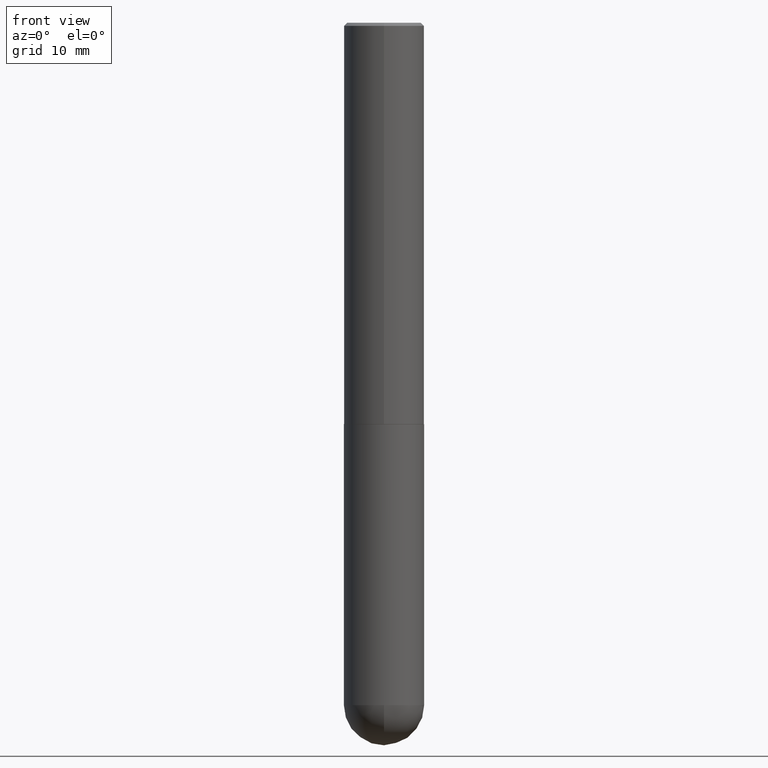
[diagram: clean part render]
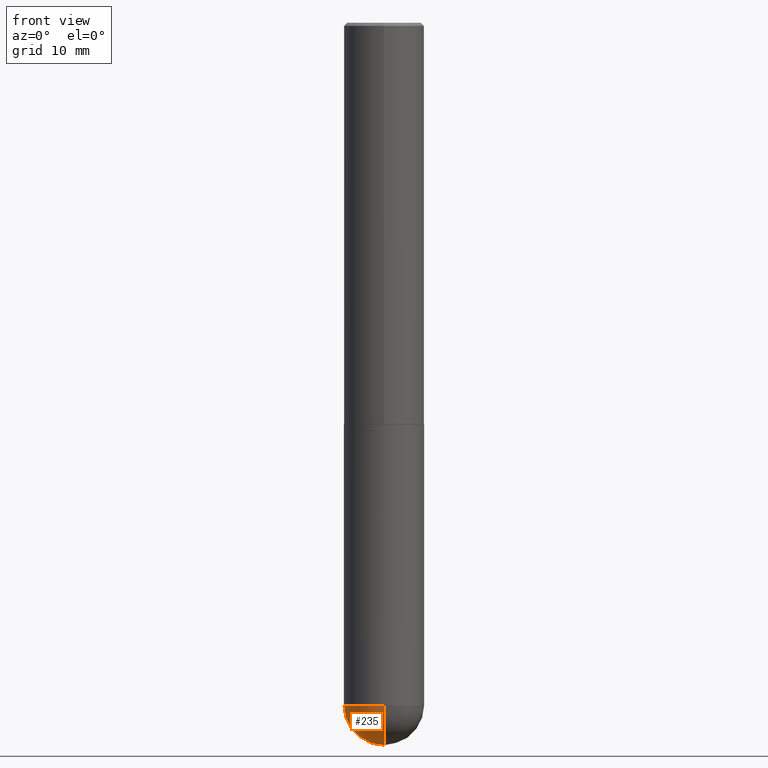
[diagram: same view with one face highlighted and labeled with its STEP entity id]
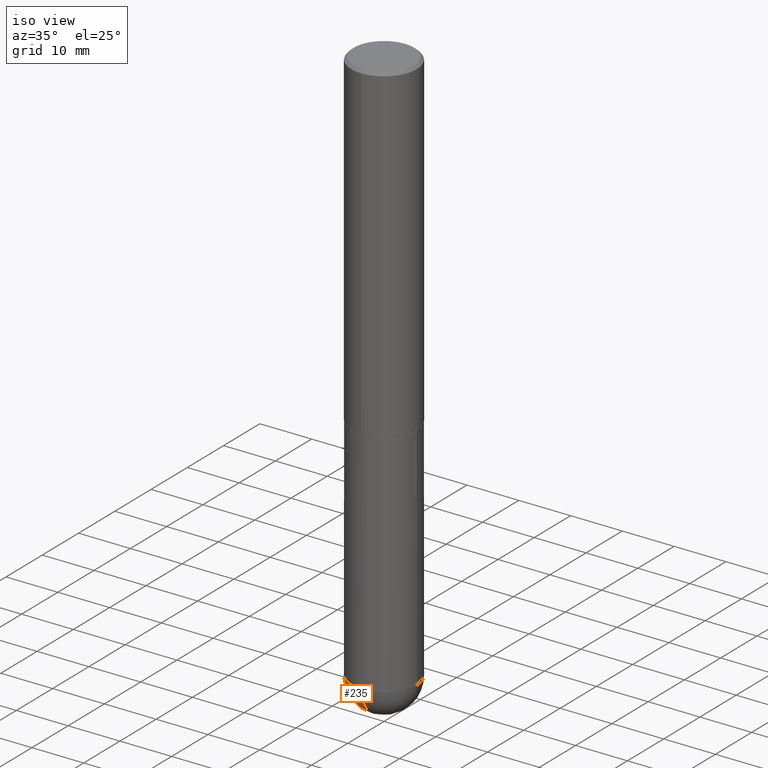
[diagram: same view with one face highlighted and labeled with its STEP entity id]
A machine part, front view. The second image highlights one B-rep face of the part: STEP entity #235.
A second angle (iso view) of the same face is appended — the face is thin or edge-on in the first view.
In plain terms, the highlighted spherical surface has radius 6.35 mm.
Its self-contained STEP definition (entity closure, byte-faithful):
#19 = CIRCLE ( 'NONE', #257, 0.2500000000000000000 ) ;
#21 = CARTESIAN_POINT ( 'NONE',  ( 1.006212264837294429E-28, -1.531297805822341912E-14, -4.250000000000000000 ) ) ;
#22 = SPHERICAL_SURFACE ( 'NONE', #69, 0.2500000000000001110 ) ;
#32 = CIRCLE ( 'NONE', #205, 0.2500000000000001110 ) ;
#40 = AXIS2_PLACEMENT_3D ( 'NONE', #176, #271, #299 ) ;
#41 = CARTESIAN_POINT ( 'NONE',  ( 1.006212264837294429E-28, -1.531297805822341912E-14, -4.250000000000000000 ) ) ;
#57 = DIRECTION ( 'NONE',  ( -1.000000000000000000, 6.982962677686265922E-15, -4.883557194083113462E-29 ) ) ;
#69 = AXIS2_PLACEMENT_3D ( 'NONE', #21, #57, #190 ) ;
#84 = CIRCLE ( 'NONE', #40, 0.2500000000000000000 ) ;
#96 = AXIS2_PLACEMENT_3D ( 'NONE', #240, #303, #298 ) ;
#98 = VERTEX_POINT ( 'NONE', #400 ) ;
#106 = ORIENTED_EDGE ( 'NONE', *, *, #110, .T. ) ;
#110 = EDGE_CURVE ( 'NONE', #326, #201, #152, .T. ) ;
#114 = CARTESIAN_POINT ( 'NONE',  ( -1.776356839400148307E-15, -0.2500000000000151545, -4.249999999999999112 ) ) ;
#121 = DIRECTION ( 'NONE',  ( 1.000000000000000000, -6.982962677686270655E-15, 0.000000000000000000 ) ) ;
#152 = CIRCLE ( 'NONE', #96, 0.2500000000000001110 ) ;
#162 = EDGE_CURVE ( 'NONE', #186, #98, #84, .T. ) ;
#175 = EDGE_CURVE ( 'NONE', #326, #186, #32, .T. ) ;
#176 = CARTESIAN_POINT ( 'NONE',  ( 1.039324242628683054E-28, -1.483879569008337040E-14, -4.250000000000000000 ) ) ;
#186 = VERTEX_POINT ( 'NONE', #302 ) ;
#187 = CARTESIAN_POINT ( 'NONE',  ( 1.068417942853397052E-28, -1.617054030794486372E-14, -4.500000000000000888 ) ) ;
#190 = DIRECTION ( 'NONE',  ( 6.982962677686265922E-15, 1.000000000000000000, -4.370956789862818783E-15 ) ) ;
#201 = VERTEX_POINT ( 'NONE', #114 ) ;
#205 = AXIS2_PLACEMENT_3D ( 'NONE', #41, #268, #394 ) ;
#213 = FACE_OUTER_BOUND ( 'NONE', #279, .T. ) ;
#220 = ORIENTED_EDGE ( 'NONE', *, *, #175, .F. ) ;
#235 = ADVANCED_FACE ( 'NONE', ( #213 ), #22, .T. ) ;
#240 = CARTESIAN_POINT ( 'NONE',  ( 1.006212264837294429E-28, -1.531297805822341912E-14, -4.250000000000000000 ) ) ;
#257 = AXIS2_PLACEMENT_3D ( 'NONE', #410, #402, #121 ) ;
#268 = DIRECTION ( 'NONE',  ( 1.000000000000000000, -6.982962677686265922E-15, 4.883557194083112340E-29 ) ) ;
#271 = DIRECTION ( 'NONE',  ( -2.445468806185136597E-29, 3.491481338843145583E-15, 1.000000000000000000 ) ) ;
#279 = EDGE_LOOP ( 'NONE', ( #220, #106, #306, #353 ) ) ;
#298 = DIRECTION ( 'NONE',  ( -7.105427357601001859E-15, -1.000000000000000000, 0.000000000000000000 ) ) ;
#299 = DIRECTION ( 'NONE',  ( 1.000000000000000000, -6.982962677686270655E-15, 0.000000000000000000 ) ) ;
#302 = CARTESIAN_POINT ( 'NONE',  ( 1.745740669421669032E-15, 0.2499999999999849842, -4.250000000000001776 ) ) ;
#303 = DIRECTION ( 'NONE',  ( -1.000000000000000000, 7.105427357601001070E-15, -4.926315508542082329E-29 ) ) ;
#306 = ORIENTED_EDGE ( 'NONE', *, *, #354, .F. ) ;
#326 = VERTEX_POINT ( 'NONE', #187 ) ;
#353 = ORIENTED_EDGE ( 'NONE', *, *, #162, .F. ) ;
#354 = EDGE_CURVE ( 'NONE', #98, #201, #19, .T. ) ;
#394 = DIRECTION ( 'NONE',  ( 6.982962677686266711E-15, 1.000000000000000000, 0.000000000000000000 ) ) ;
#400 = CARTESIAN_POINT ( 'NONE',  ( -0.2500000000000000000, -1.000739267919536879E-14, -4.250000000000000000 ) ) ;
#402 = DIRECTION ( 'NONE',  ( -2.445468806185136597E-29, 3.491481338843145583E-15, 1.000000000000000000 ) ) ;
#410 = CARTESIAN_POINT ( 'NONE',  ( 1.039324242628683054E-28, -1.483879569008337040E-14, -4.250000000000000000 ) ) ;